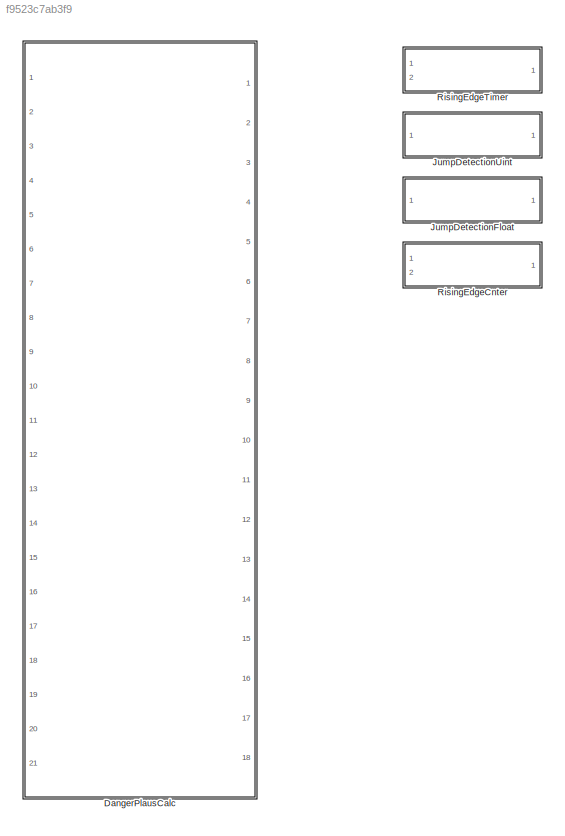
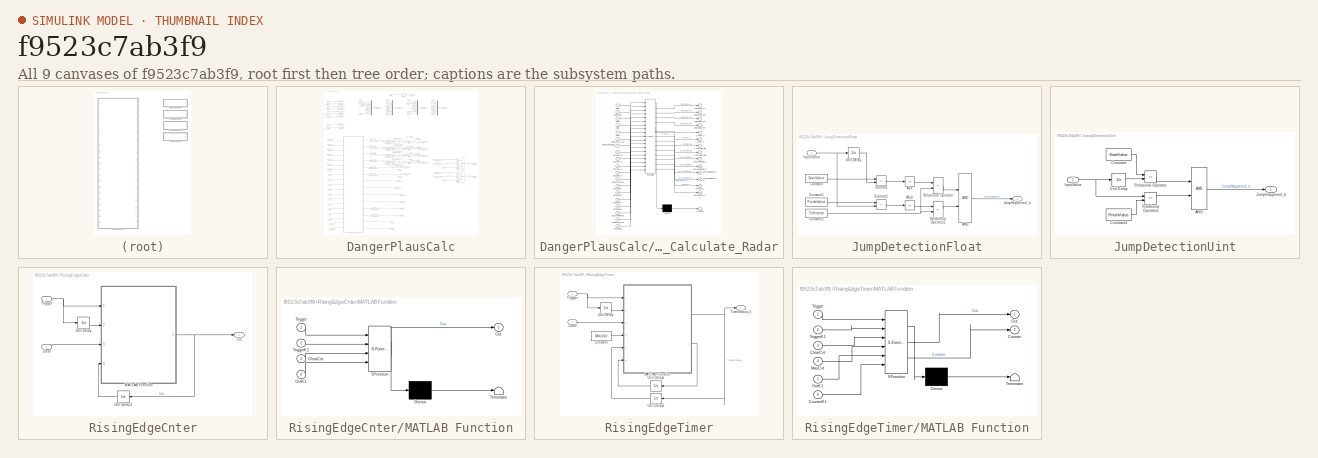
[diagram: thumbnail index - all 9 canvases of the model, root first then tree order]
MODEL slx_f9523c7ab3f9
KIND library
CONFIG AbsTol = auto
CONFIG EnableMultiTasking = off
CONFIG FixedStep = auto
CONFIG MaxStep = auto
CONFIG MinStep = auto
CONFIG RelTol = 1e-3
CONFIG SampleTimeConstraint = Unconstrained
CONFIG SolverName = VariableStepAuto
CONFIG StartTime = 0.0
CONFIG StopTime = 10.0
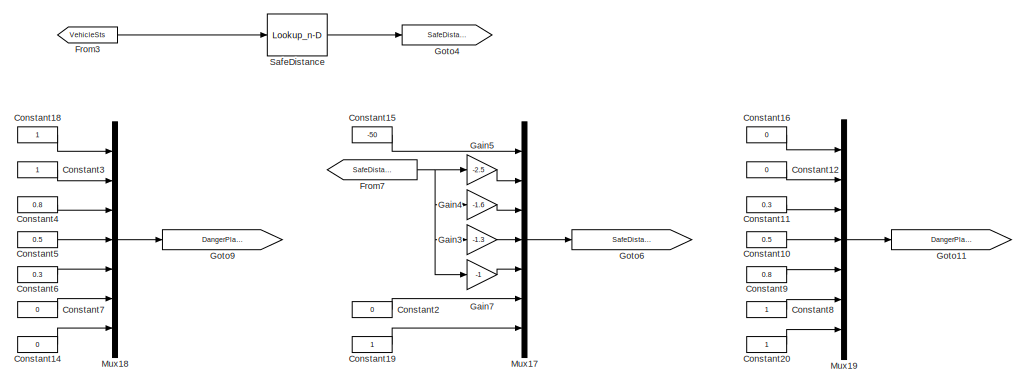
[diagram: DangerPlausCalc - part 1/7, top center region]
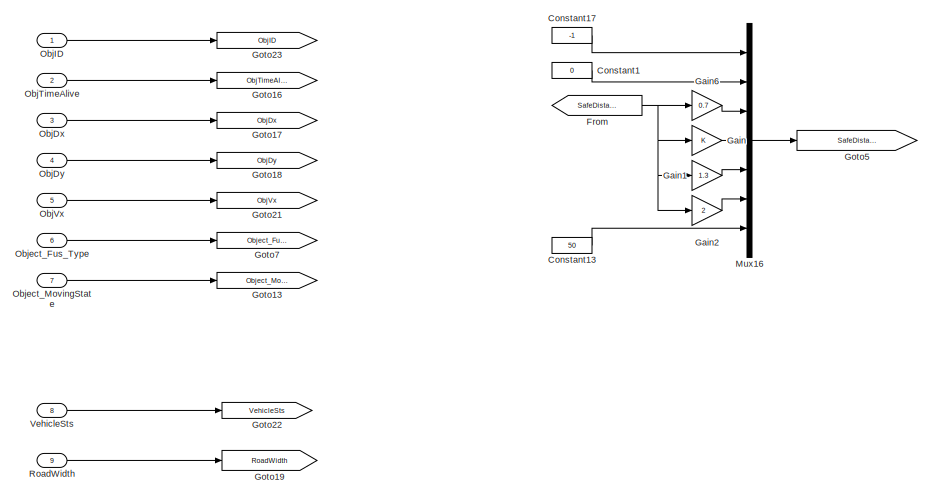
[diagram: DangerPlausCalc - part 2/7, top left region]
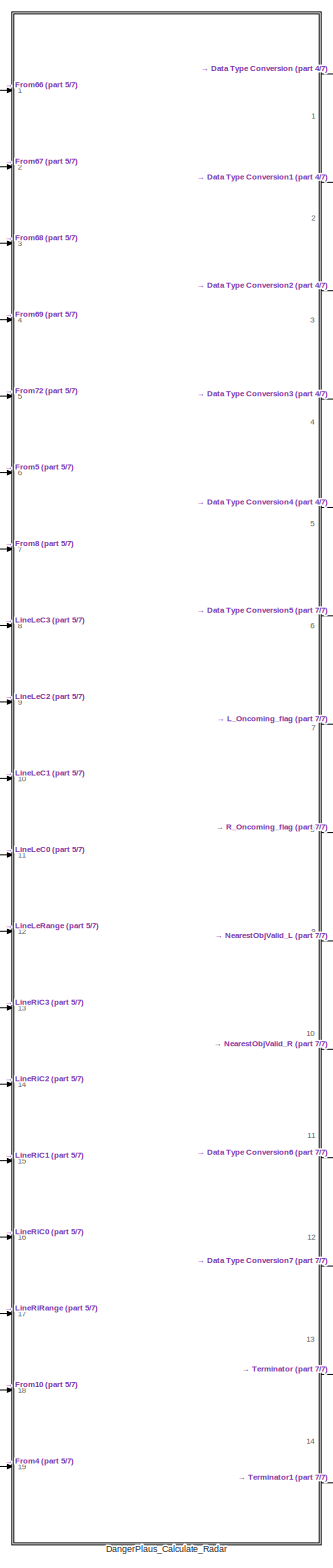
[diagram: DangerPlausCalc - part 3/7, middle left region]
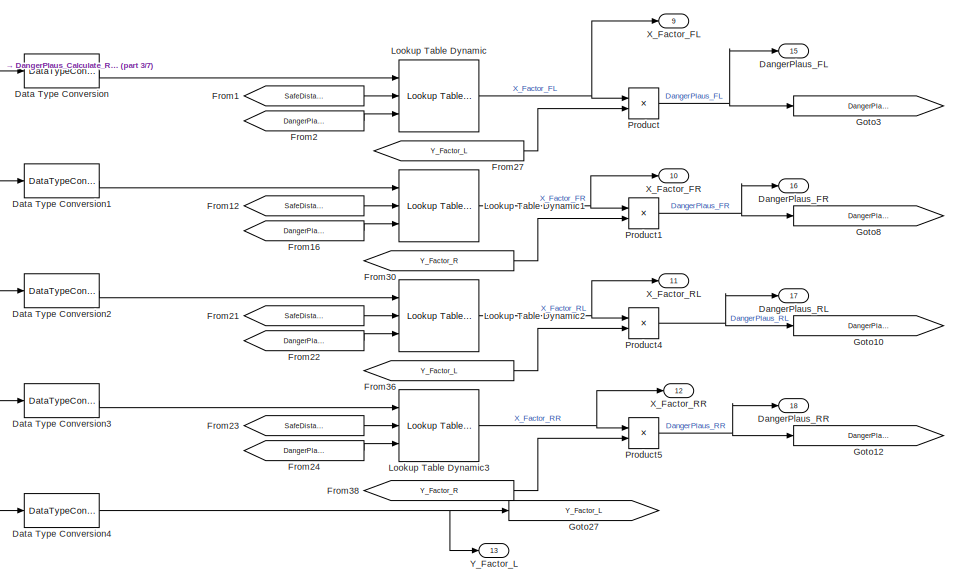
[diagram: DangerPlausCalc - part 4/7, central region]
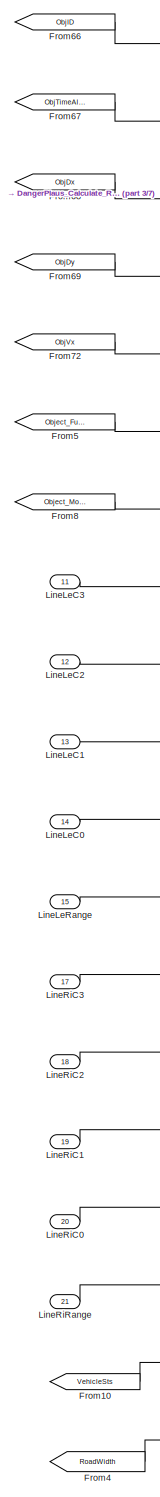
[diagram: DangerPlausCalc - part 5/7, middle left region]
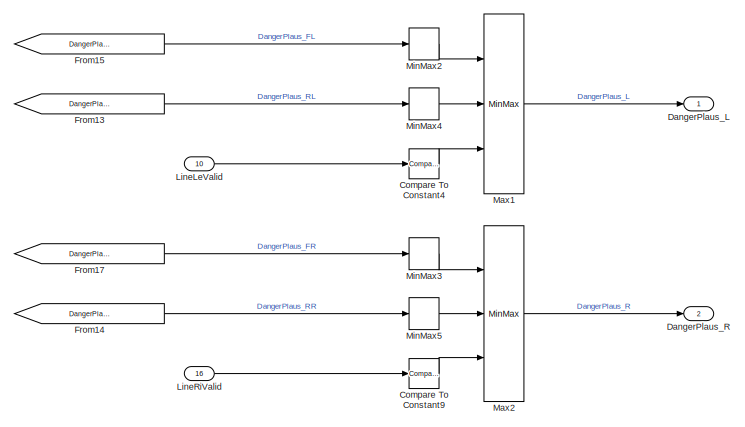
[diagram: DangerPlausCalc - part 6/7, middle right region]
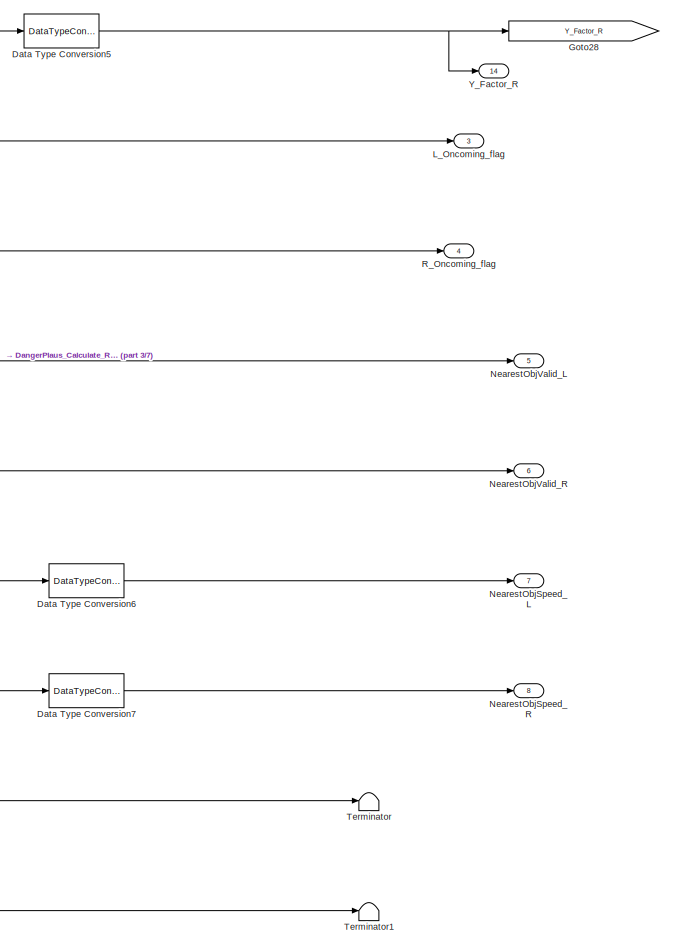
[diagram: DangerPlausCalc - part 7/7, bottom center region]
BLOCK [SubSystem] DangerPlausCalc
  Ports = [21, 18]
  RTWFcnNameOpts = Use subsystem name
  RTWFileNameOpts = Use function name
  RTWSystemCode = Reusable function
  RequestExecContextInheritance = off
  TreatAsAtomicUnit = on
BLOCK [Reference] DangerPlausCalc/Compare To Constant4  REF=simulink/Logic and Bit
Operations/Compare
To Constant
  Ports = [1, 1]
  SourceBlock = simulink/Logic and Bit\nOperations/Compare\nTo Constant
  SourceProductBaseCode = SL
  SourceType = Compare To Constant
BLOCK [Reference] DangerPlausCalc/Compare To Constant9  REF=simulink/Logic and Bit
Operations/Compare
To Constant
  Ports = [1, 1]
  SourceBlock = simulink/Logic and Bit\nOperations/Compare\nTo Constant
  SourceProductBaseCode = SL
  SourceType = Compare To Constant
BLOCK [Constant] DangerPlausCalc/Constant1
  OutDataTypeStr = Inherit: Inherit via back propagation
  Value = 0
BLOCK [Constant] DangerPlausCalc/Constant10
  OutDataTypeStr = Inherit: Inherit via back propagation
  Value = 0.5
BLOCK [Constant] DangerPlausCalc/Constant11
  OutDataTypeStr = Inherit: Inherit via back propagation
  Value = 0.3
BLOCK [Constant] DangerPlausCalc/Constant12
  OutDataTypeStr = Inherit: Inherit via back propagation
  Value = 0
BLOCK [Constant] DangerPlausCalc/Constant13
  OutDataTypeStr = Inherit: Inherit via back propagation
  Value = 50
BLOCK [Constant] DangerPlausCalc/Constant14
  OutDataTypeStr = Inherit: Inherit via back propagation
  Value = 0
BLOCK [Constant] DangerPlausCalc/Constant15
  OutDataTypeStr = Inherit: Inherit via back propagation
  Value = -50
BLOCK [Constant] DangerPlausCalc/Constant16
  OutDataTypeStr = Inherit: Inherit via back propagation
  Value = 0
BLOCK [Constant] DangerPlausCalc/Constant17
  OutDataTypeStr = Inherit: Inherit via back propagation
  Value = -1
BLOCK [Constant] DangerPlausCalc/Constant18
  OutDataTypeStr = Inherit: Inherit via back propagation
BLOCK [Constant] DangerPlausCalc/Constant19
  OutDataTypeStr = Inherit: Inherit via back propagation
BLOCK [Constant] DangerPlausCalc/Constant2
  OutDataTypeStr = Inherit: Inherit via back propagation
  Value = 0
BLOCK [Constant] DangerPlausCalc/Constant20
  OutDataTypeStr = Inherit: Inherit via back propagation
BLOCK [Constant] DangerPlausCalc/Constant3
  OutDataTypeStr = Inherit: Inherit via back propagation
BLOCK [Constant] DangerPlausCalc/Constant4
  OutDataTypeStr = Inherit: Inherit via back propagation
  Value = 0.8
BLOCK [Constant] DangerPlausCalc/Constant5
  OutDataTypeStr = Inherit: Inherit via back propagation
  Value = 0.5
BLOCK [Constant] DangerPlausCalc/Constant6
  OutDataTypeStr = Inherit: Inherit via back propagation
  Value = 0.3
BLOCK [Constant] DangerPlausCalc/Constant7
  OutDataTypeStr = Inherit: Inherit via back propagation
  Value = 0
BLOCK [Constant] DangerPlausCalc/Constant8
  OutDataTypeStr = Inherit: Inherit via back propagation
BLOCK [Constant] DangerPlausCalc/Constant9
  OutDataTypeStr = Inherit: Inherit via back propagation
  Value = 0.8
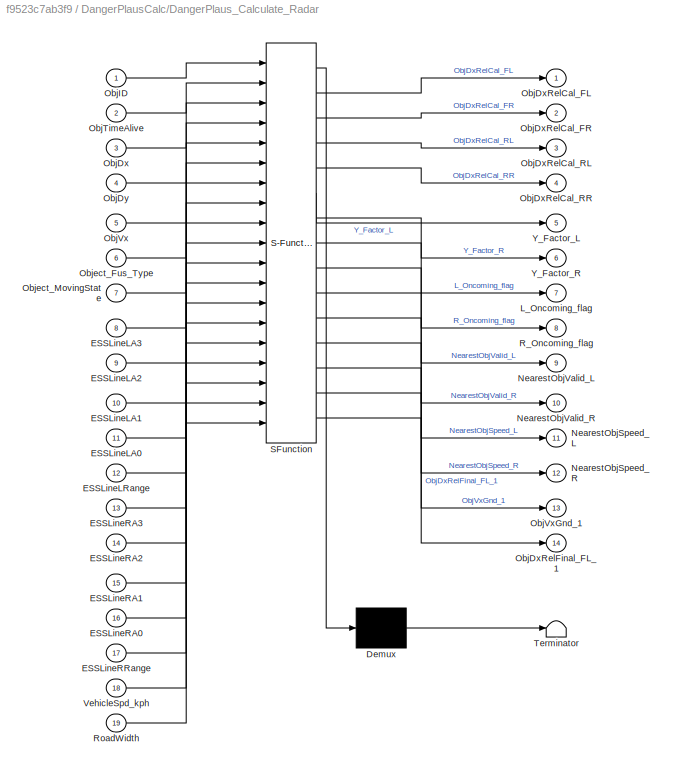
BLOCK [SubSystem] DangerPlausCalc/DangerPlaus_Calculate_Radar
  ErrorFcn = Stateflow.Translate.translate
  PermitHierarchicalResolution = ExplicitOnly
  Ports = [19, 14]
  RequestExecContextInheritance = off
  SFBlockType = MATLAB Function
  TreatAsAtomicUnit = on
BLOCK [Demux] DangerPlausCalc/DangerPlaus_Calculate_Radar/ Demux 
  Outputs = 1
  Ports = [1, 1]
BLOCK [S-Function] DangerPlausCalc/DangerPlaus_Calculate_Radar/ SFunction 
  EnableBusSupport = on
  FunctionName = sf_sfun
  Parameters = ObjNum,P_Global_DxvFrontBumper_m,P_Global_DxvRearBumper_m,P_VSM_DPC_HWALineRearA2Factor,P_VSM_DPC_HWALineRearA3Factor
  PortCounts = [19 15]
  Ports = [19, 15]
  SFcnIsStateOwnerBlock = off
  SFunctionDeploymentMode = off
  Tag = Stateflow S-Function 7
BLOCK [Terminator] DangerPlausCalc/DangerPlaus_Calculate_Radar/ Terminator 
BLOCK [Inport] DangerPlausCalc/DangerPlaus_Calculate_Radar/ESSLineLA0
  Port = 11
BLOCK [Inport] DangerPlausCalc/DangerPlaus_Calculate_Radar/ESSLineLA1
  Port = 10
BLOCK [Inport] DangerPlausCalc/DangerPlaus_Calculate_Radar/ESSLineLA2
  Port = 9
BLOCK [Inport] DangerPlausCalc/DangerPlaus_Calculate_Radar/ESSLineLA3
  Port = 8
BLOCK [Inport] DangerPlausCalc/DangerPlaus_Calculate_Radar/ESSLineLRange
  Port = 12
BLOCK [Inport] DangerPlausCalc/DangerPlaus_Calculate_Radar/ESSLineRA0
  Port = 16
BLOCK [Inport] DangerPlausCalc/DangerPlaus_Calculate_Radar/ESSLineRA1
  Port = 15
BLOCK [Inport] DangerPlausCalc/DangerPlaus_Calculate_Radar/ESSLineRA2
  Port = 14
BLOCK [Inport] DangerPlausCalc/DangerPlaus_Calculate_Radar/ESSLineRA3
  Port = 13
BLOCK [Inport] DangerPlausCalc/DangerPlaus_Calculate_Radar/ESSLineRRange
  Port = 17
BLOCK [Outport] DangerPlausCalc/DangerPlaus_Calculate_Radar/L_Oncoming_flag
  Port = 7
BLOCK [Outport] DangerPlausCalc/DangerPlaus_Calculate_Radar/NearestObjSpeed_L
  Port = 11
BLOCK [Outport] DangerPlausCalc/DangerPlaus_Calculate_Radar/NearestObjSpeed_R
  Port = 12
BLOCK [Outport] DangerPlausCalc/DangerPlaus_Calculate_Radar/NearestObjValid_L
  Port = 9
BLOCK [Outport] DangerPlausCalc/DangerPlaus_Calculate_Radar/NearestObjValid_R
  Port = 10
BLOCK [Inport] DangerPlausCalc/DangerPlaus_Calculate_Radar/ObjDx
  Port = 3
BLOCK [Outport] DangerPlausCalc/DangerPlaus_Calculate_Radar/ObjDxRelCal_FL
BLOCK [Outport] DangerPlausCalc/DangerPlaus_Calculate_Radar/ObjDxRelCal_FR
  Port = 2
BLOCK [Outport] DangerPlausCalc/DangerPlaus_Calculate_Radar/ObjDxRelCal_RL
  Port = 3
BLOCK [Outport] DangerPlausCalc/DangerPlaus_Calculate_Radar/ObjDxRelCal_RR
  Port = 4
BLOCK [Outport] DangerPlausCalc/DangerPlaus_Calculate_Radar/ObjDxRelFinal_FL_1
  Port = 14
BLOCK [Inport] DangerPlausCalc/DangerPlaus_Calculate_Radar/ObjDy
  Port = 4
BLOCK [Inport] DangerPlausCalc/DangerPlaus_Calculate_Radar/ObjID
BLOCK [Inport] DangerPlausCalc/DangerPlaus_Calculate_Radar/ObjTimeAlive
  Port = 2
BLOCK [Inport] DangerPlausCalc/DangerPlaus_Calculate_Radar/ObjVx
  Port = 5
BLOCK [Outport] DangerPlausCalc/DangerPlaus_Calculate_Radar/ObjVxGnd_1
  Port = 13
BLOCK [Inport] DangerPlausCalc/DangerPlaus_Calculate_Radar/Object_Fus_Type
  Port = 6
BLOCK [Inport] DangerPlausCalc/DangerPlaus_Calculate_Radar/Object_MovingState
  Port = 7
BLOCK [Outport] DangerPlausCalc/DangerPlaus_Calculate_Radar/R_Oncoming_flag
  Port = 8
BLOCK [Inport] DangerPlausCalc/DangerPlaus_Calculate_Radar/RoadWidth
  Port = 19
BLOCK [Inport] DangerPlausCalc/DangerPlaus_Calculate_Radar/VehicleSpd_kph
  Port = 18
BLOCK [Outport] DangerPlausCalc/DangerPlaus_Calculate_Radar/Y_Factor_L
  Port = 5
BLOCK [Outport] DangerPlausCalc/DangerPlaus_Calculate_Radar/Y_Factor_R
  Port = 6
BLOCK [Outport] DangerPlausCalc/DangerPlaus_FL
  OutDataTypeStr = single
  Port = 15
BLOCK [Outport] DangerPlausCalc/DangerPlaus_FR
  OutDataTypeStr = single
  Port = 16
BLOCK [Outport] DangerPlausCalc/DangerPlaus_L
  OutDataTypeStr = single
BLOCK [Outport] DangerPlausCalc/DangerPlaus_R
  OutDataTypeStr = single
  Port = 2
BLOCK [Outport] DangerPlausCalc/DangerPlaus_RL
  OutDataTypeStr = single
  Port = 17
BLOCK [Outport] DangerPlausCalc/DangerPlaus_RR
  OutDataTypeStr = single
  Port = 18
BLOCK [DataTypeConversion] DangerPlausCalc/Data Type Conversion
  OutDataTypeStr = single
  RndMeth = Floor
  SaturateOnIntegerOverflow = off
BLOCK [DataTypeConversion] DangerPlausCalc/Data Type Conversion1
  OutDataTypeStr = single
  RndMeth = Floor
  SaturateOnIntegerOverflow = off
BLOCK [DataTypeConversion] DangerPlausCalc/Data Type Conversion2
  OutDataTypeStr = single
  RndMeth = Floor
  SaturateOnIntegerOverflow = off
BLOCK [DataTypeConversion] DangerPlausCalc/Data Type Conversion3
  OutDataTypeStr = single
  RndMeth = Floor
  SaturateOnIntegerOverflow = off
BLOCK [DataTypeConversion] DangerPlausCalc/Data Type Conversion4
  OutDataTypeStr = single
  RndMeth = Floor
  SaturateOnIntegerOverflow = off
BLOCK [DataTypeConversion] DangerPlausCalc/Data Type Conversion5
  OutDataTypeStr = single
  RndMeth = Floor
  SaturateOnIntegerOverflow = off
BLOCK [DataTypeConversion] DangerPlausCalc/Data Type Conversion6
  OutDataTypeStr = single
  RndMeth = Floor
  SaturateOnIntegerOverflow = off
BLOCK [DataTypeConversion] DangerPlausCalc/Data Type Conversion7
  OutDataTypeStr = single
  RndMeth = Floor
  SaturateOnIntegerOverflow = off
BLOCK [From] DangerPlausCalc/From
  GotoTag = SafeDistance
BLOCK [From] DangerPlausCalc/From1
  GotoTag = SafeDistanceMatrix_F
BLOCK [From] DangerPlausCalc/From10
  GotoTag = VehicleSts
BLOCK [From] DangerPlausCalc/From12
  GotoTag = SafeDistanceMatrix_F
BLOCK [From] DangerPlausCalc/From13
  GotoTag = DangerPlaus_RL
BLOCK [From] DangerPlausCalc/From14
  GotoTag = DangerPlaus_RR
BLOCK [From] DangerPlausCalc/From15
  GotoTag = DangerPlaus_FL
BLOCK [From] DangerPlausCalc/From16
  GotoTag = DangerPlausMatrix_F
BLOCK [From] DangerPlausCalc/From17
  GotoTag = DangerPlaus_FR
BLOCK [From] DangerPlausCalc/From2
  GotoTag = DangerPlausMatrix_F
BLOCK [From] DangerPlausCalc/From21
  GotoTag = SafeDistanceMatrix_R
BLOCK [From] DangerPlausCalc/From22
  GotoTag = DangerPlausMatrix_R
BLOCK [From] DangerPlausCalc/From23
  GotoTag = SafeDistanceMatrix_R
BLOCK [From] DangerPlausCalc/From24
  GotoTag = DangerPlausMatrix_R
BLOCK [From] DangerPlausCalc/From27
  GotoTag = Y_Factor_L
BLOCK [From] DangerPlausCalc/From3
  GotoTag = VehicleSts
BLOCK [From] DangerPlausCalc/From30
  GotoTag = Y_Factor_R
BLOCK [From] DangerPlausCalc/From36
  GotoTag = Y_Factor_L
BLOCK [From] DangerPlausCalc/From38
  GotoTag = Y_Factor_R
BLOCK [From] DangerPlausCalc/From4
  GotoTag = RoadWidth
BLOCK [From] DangerPlausCalc/From5
  GotoTag = Object_Fus_Type
BLOCK [From] DangerPlausCalc/From66
  GotoTag = ObjID
BLOCK [From] DangerPlausCalc/From67
  GotoTag = ObjTimeAlive
BLOCK [From] DangerPlausCalc/From68
  GotoTag = ObjDx
BLOCK [From] DangerPlausCalc/From69
  GotoTag = ObjDy
BLOCK [From] DangerPlausCalc/From7
  GotoTag = SafeDistance
BLOCK [From] DangerPlausCalc/From72
  GotoTag = ObjVx
BLOCK [From] DangerPlausCalc/From8
  GotoTag = Object_MovingState
BLOCK [Gain] DangerPlausCalc/Gain
BLOCK [Gain] DangerPlausCalc/Gain1
  Gain = 1.3
BLOCK [Gain] DangerPlausCalc/Gain2
  Gain = 2
BLOCK [Gain] DangerPlausCalc/Gain3
  Gain = -1.3
BLOCK [Gain] DangerPlausCalc/Gain4
  Gain = -1.6
BLOCK [Gain] DangerPlausCalc/Gain5
  Gain = -2.5
BLOCK [Gain] DangerPlausCalc/Gain6
  Gain = 0.7
BLOCK [Gain] DangerPlausCalc/Gain7
  Gain = -1
BLOCK [Goto] DangerPlausCalc/Goto10
  GotoTag = DangerPlaus_RL
BLOCK [Goto] DangerPlausCalc/Goto11
  GotoTag = DangerPlausMatrix_R
BLOCK [Goto] DangerPlausCalc/Goto12
  GotoTag = DangerPlaus_RR
BLOCK [Goto] DangerPlausCalc/Goto13
  GotoTag = Object_MovingState
BLOCK [Goto] DangerPlausCalc/Goto16
  GotoTag = ObjTimeAlive
BLOCK [Goto] DangerPlausCalc/Goto17
  GotoTag = ObjDx
BLOCK [Goto] DangerPlausCalc/Goto18
  GotoTag = ObjDy
BLOCK [Goto] DangerPlausCalc/Goto19
  GotoTag = RoadWidth
BLOCK [Goto] DangerPlausCalc/Goto21
  GotoTag = ObjVx
BLOCK [Goto] DangerPlausCalc/Goto22
  GotoTag = VehicleSts
BLOCK [Goto] DangerPlausCalc/Goto23
  GotoTag = ObjID
BLOCK [Goto] DangerPlausCalc/Goto27
  GotoTag = Y_Factor_L
BLOCK [Goto] DangerPlausCalc/Goto28
  GotoTag = Y_Factor_R
BLOCK [Goto] DangerPlausCalc/Goto3
  GotoTag = DangerPlaus_FL
BLOCK [Goto] DangerPlausCalc/Goto4
  GotoTag = SafeDistance
BLOCK [Goto] DangerPlausCalc/Goto5
  GotoTag = SafeDistanceMatrix_F
BLOCK [Goto] DangerPlausCalc/Goto6
  GotoTag = SafeDistanceMatrix_R
BLOCK [Goto] DangerPlausCalc/Goto7
  GotoTag = Object_Fus_Type
BLOCK [Goto] DangerPlausCalc/Goto8
  GotoTag = DangerPlaus_FR
BLOCK [Goto] DangerPlausCalc/Goto9
  GotoTag = DangerPlausMatrix_F
BLOCK [Outport] DangerPlausCalc/L_Oncoming_flag
  OutDataTypeStr = boolean
  Port = 3
BLOCK [Inport] DangerPlausCalc/LineLeC0
  Port = 14
BLOCK [Inport] DangerPlausCalc/LineLeC1
  Port = 13
BLOCK [Inport] DangerPlausCalc/LineLeC2
  Port = 12
BLOCK [Inport] DangerPlausCalc/LineLeC3
  Port = 11
BLOCK [Inport] DangerPlausCalc/LineLeRange
  Port = 15
BLOCK [Inport] DangerPlausCalc/LineLeValid
  Port = 10
BLOCK [Inport] DangerPlausCalc/LineRiC0
  Port = 20
BLOCK [Inport] DangerPlausCalc/LineRiC1
  Port = 19
BLOCK [Inport] DangerPlausCalc/LineRiC2
  Port = 18
BLOCK [Inport] DangerPlausCalc/LineRiC3
  Port = 17
BLOCK [Inport] DangerPlausCalc/LineRiRange
  Port = 21
BLOCK [Inport] DangerPlausCalc/LineRiValid
  Port = 16
BLOCK [Reference] DangerPlausCalc/Lookup Table Dynamic  REF=simulink/Lookup
Tables/Lookup
Table
Dynamic
  Ports = [3, 1]
  SourceBlock = simulink/Lookup\nTables/Lookup\nTable\nDynamic
  SourceProductBaseCode = SL
  SourceType = Lookup Table Dynamic
BLOCK [Reference] DangerPlausCalc/Lookup Table Dynamic1  REF=simulink/Lookup
Tables/Lookup
Table
Dynamic
  Ports = [3, 1]
  SourceBlock = simulink/Lookup\nTables/Lookup\nTable\nDynamic
  SourceProductBaseCode = SL
  SourceType = Lookup Table Dynamic
BLOCK [Reference] DangerPlausCalc/Lookup Table Dynamic2  REF=simulink/Lookup
Tables/Lookup
Table
Dynamic
  Ports = [3, 1]
  SourceBlock = simulink/Lookup\nTables/Lookup\nTable\nDynamic
  SourceProductBaseCode = SL
  SourceType = Lookup Table Dynamic
BLOCK [Reference] DangerPlausCalc/Lookup Table Dynamic3  REF=simulink/Lookup
Tables/Lookup
Table
Dynamic
  Ports = [3, 1]
  SourceBlock = simulink/Lookup\nTables/Lookup\nTable\nDynamic
  SourceProductBaseCode = SL
  SourceType = Lookup Table Dynamic
BLOCK [MinMax] DangerPlausCalc/Max1
  Function = max
  Inputs = 3
  Ports = [3, 1]
BLOCK [MinMax] DangerPlausCalc/Max2
  Function = max
  Inputs = 3
  Ports = [3, 1]
BLOCK [MinMax] DangerPlausCalc/MinMax2
  Function = max
  Ports = [1, 1]
BLOCK [MinMax] DangerPlausCalc/MinMax3
  Function = max
  Ports = [1, 1]
BLOCK [MinMax] DangerPlausCalc/MinMax4
  Function = max
  Ports = [1, 1]
BLOCK [MinMax] DangerPlausCalc/MinMax5
  Function = max
  Ports = [1, 1]
BLOCK [Mux] DangerPlausCalc/Mux16
  DisplayOption = bar
  Inputs = 7
  Ports = [7, 1]
BLOCK [Mux] DangerPlausCalc/Mux17
  DisplayOption = bar
  Inputs = 7
  Ports = [7, 1]
BLOCK [Mux] DangerPlausCalc/Mux18
  DisplayOption = bar
  Inputs = 7
  Ports = [7, 1]
BLOCK [Mux] DangerPlausCalc/Mux19
  DisplayOption = bar
  Inputs = 7
  Ports = [7, 1]
BLOCK [Outport] DangerPlausCalc/NearestObjSpeed_L
  OutDataTypeStr = single
  Port = 7
BLOCK [Outport] DangerPlausCalc/NearestObjSpeed_R
  OutDataTypeStr = single
  Port = 8
BLOCK [Outport] DangerPlausCalc/NearestObjValid_L
  OutDataTypeStr = boolean
  Port = 5
BLOCK [Outport] DangerPlausCalc/NearestObjValid_R
  OutDataTypeStr = boolean
  Port = 6
BLOCK [Inport] DangerPlausCalc/ObjDx
  Port = 3
  PortDimensions = ObjNum
  VarSizeSig = No
BLOCK [Inport] DangerPlausCalc/ObjDy
  Port = 4
  PortDimensions = ObjNum
BLOCK [Inport] DangerPlausCalc/ObjID
  PortDimensions = ObjNum
  VarSizeSig = No
BLOCK [Inport] DangerPlausCalc/ObjTimeAlive
  Port = 2
  PortDimensions = ObjNum
  VarSizeSig = No
BLOCK [Inport] DangerPlausCalc/ObjVx
  Port = 5
  PortDimensions = ObjNum
BLOCK [Inport] DangerPlausCalc/Object_Fus_Type
  Port = 6
  PortDimensions = ObjNum
BLOCK [Inport] DangerPlausCalc/Object_MovingState
  Port = 7
  PortDimensions = ObjNum
BLOCK [Product] DangerPlausCalc/Product
  Ports = [2, 1]
BLOCK [Product] DangerPlausCalc/Product1
  Ports = [2, 1]
BLOCK [Product] DangerPlausCalc/Product4
  Ports = [2, 1]
BLOCK [Product] DangerPlausCalc/Product5
  Ports = [2, 1]
BLOCK [Outport] DangerPlausCalc/R_Oncoming_flag
  OutDataTypeStr = boolean
  Port = 4
BLOCK [Inport] DangerPlausCalc/RoadWidth
  Port = 9
BLOCK [Lookup_n-D] DangerPlausCalc/SafeDistance
  BreakpointsForDimension1 = [0,20,30,40,120]
  InputPortMap = u0
  NumberOfTableDimensions = 1
  Ports = [1, 1]
  RndMeth = Simplest
  Table = [4,5,8,10,10]
BLOCK [Terminator] DangerPlausCalc/Terminator
BLOCK [Terminator] DangerPlausCalc/Terminator1
BLOCK [Inport] DangerPlausCalc/VehicleSts
  Port = 8
BLOCK [Outport] DangerPlausCalc/X_Factor_FL
  OutDataTypeStr = single
  Port = 9
BLOCK [Outport] DangerPlausCalc/X_Factor_FR
  OutDataTypeStr = single
  Port = 10
BLOCK [Outport] DangerPlausCalc/X_Factor_RL
  OutDataTypeStr = single
  Port = 11
BLOCK [Outport] DangerPlausCalc/X_Factor_RR
  OutDataTypeStr = single
  Port = 12
BLOCK [Outport] DangerPlausCalc/Y_Factor_L
  OutDataTypeStr = single
  Port = 13
BLOCK [Outport] DangerPlausCalc/Y_Factor_R
  OutDataTypeStr = single
  Port = 14
BLOCK [SubSystem] JumpDetectionFloat
  Ports = [1, 1]
  RequestExecContextInheritance = off
BLOCK [Logic] JumpDetectionFloat/AND
  AllPortsSameDT = off
  OutDataTypeStr = boolean
  Ports = [2, 1]
BLOCK [Abs] JumpDetectionFloat/Abs
  SaturateOnIntegerOverflow = off
BLOCK [Abs] JumpDetectionFloat/Abs1
  SaturateOnIntegerOverflow = off
BLOCK [Constant] JumpDetectionFloat/Constant
  OutDataTypeStr = single
  Value = StartValue
BLOCK [Constant] JumpDetectionFloat/Constant1
  OutDataTypeStr = single
  Value = FinishValue
BLOCK [Constant] JumpDetectionFloat/Constant2
  OutDataTypeStr = single
  Value = Tolerance
BLOCK [Inport] JumpDetectionFloat/InputValue
  OutDataTypeStr = single
BLOCK [Outport] JumpDetectionFloat/JumpHappened_b
BLOCK [RelationalOperator] JumpDetectionFloat/Relational Operator
  InputSameDT = off
  Operator = <=
  OutDataTypeStr = boolean
  Ports = [2, 1]
  RndMeth = Simplest
BLOCK [RelationalOperator] JumpDetectionFloat/Relational Operator1
  InputSameDT = off
  Operator = <=
  OutDataTypeStr = boolean
  Ports = [2, 1]
  RndMeth = Simplest
BLOCK [Sum] JumpDetectionFloat/Subtract
  IconShape = rectangular
  Inputs = +-
  Ports = [2, 1]
BLOCK [Sum] JumpDetectionFloat/Subtract1
  IconShape = rectangular
  Inputs = +-
  Ports = [2, 1]
BLOCK [UnitDelay] JumpDetectionFloat/Unit Delay
  HasFrameUpgradeWarning = on
  SampleTime = -1
BLOCK [SubSystem] JumpDetectionUint
  Ports = [1, 1]
  RequestExecContextInheritance = off
BLOCK [Logic] JumpDetectionUint/AND
  AllPortsSameDT = off
  OutDataTypeStr = boolean
  Ports = [2, 1]
BLOCK [Constant] JumpDetectionUint/Constant
  OutDataTypeStr = uint8
  Value = StartValue
BLOCK [Constant] JumpDetectionUint/Constant1
  OutDataTypeStr = uint8
  Value = FinishValue
BLOCK [Inport] JumpDetectionUint/InputValue
  OutDataTypeStr = uint8
BLOCK [Outport] JumpDetectionUint/JumpHappened_b
BLOCK [RelationalOperator] JumpDetectionUint/Relational Operator
  InputSameDT = off
  Operator = ==
  OutDataTypeStr = boolean
  Ports = [2, 1]
  RndMeth = Simplest
BLOCK [RelationalOperator] JumpDetectionUint/Relational Operator1
  InputSameDT = off
  Operator = ==
  OutDataTypeStr = boolean
  Ports = [2, 1]
  RndMeth = Simplest
BLOCK [UnitDelay] JumpDetectionUint/Unit Delay
  HasFrameUpgradeWarning = on
  SampleTime = -1
BLOCK [SubSystem] RisingEdgeCnter
  Ports = [2, 1]
  RequestExecContextInheritance = off
BLOCK [Inport] RisingEdgeCnter/Clear
  OutDataTypeStr = boolean
  Port = 2
BLOCK [Outport] RisingEdgeCnter/Cnt
  OutDataTypeStr = uint8
BLOCK [SubSystem] RisingEdgeCnter/MATLAB Function
  ErrorFcn = Stateflow.Translate.translate
  PermitHierarchicalResolution = ExplicitOnly
  Ports = [4, 1]
  RequestExecContextInheritance = off
  SFBlockType = MATLAB Function
  TreatAsAtomicUnit = on
BLOCK [Demux] RisingEdgeCnter/MATLAB Function/ Demux 
  Outputs = 1
  Ports = [1, 1]
BLOCK [S-Function] RisingEdgeCnter/MATLAB Function/ SFunction 
  EnableBusSupport = off
  FunctionName = sf_sfun
  PortCounts = [4 2]
  Ports = [4, 2]
  SFcnIsStateOwnerBlock = off
  SFunctionDeploymentMode = off
  Tag = Stateflow S-Function 2
BLOCK [Terminator] RisingEdgeCnter/MATLAB Function/ Terminator 
BLOCK [Inport] RisingEdgeCnter/MATLAB Function/ClearCnt
  Port = 3
BLOCK [Outport] RisingEdgeCnter/MATLAB Function/Out
BLOCK [Inport] RisingEdgeCnter/MATLAB Function/OutK1
  Port = 4
BLOCK [Inport] RisingEdgeCnter/MATLAB Function/Trigger
BLOCK [Inport] RisingEdgeCnter/MATLAB Function/TriggerK1
  Port = 2
BLOCK [Inport] RisingEdgeCnter/Trigger
  OutDataTypeStr = boolean
BLOCK [UnitDelay] RisingEdgeCnter/Unit Delay
  HasFrameUpgradeWarning = on
  SampleTime = -1
BLOCK [UnitDelay] RisingEdgeCnter/Unit Delay2
  HasFrameUpgradeWarning = on
  SampleTime = -1
BLOCK [SubSystem] RisingEdgeTimer
  Ports = [2, 1]
  RequestExecContextInheritance = off
BLOCK [Inport] RisingEdgeTimer/Clear
  OutDataTypeStr = boolean
  Port = 2
BLOCK [Constant] RisingEdgeTimer/Constant
  OutDataTypeStr = uint16
  Value = MaxCnt
BLOCK [SubSystem] RisingEdgeTimer/MATLAB Function
  ErrorFcn = Stateflow.Translate.translate
  PermitHierarchicalResolution = ExplicitOnly
  Ports = [6, 2]
  RequestExecContextInheritance = off
  SFBlockType = MATLAB Function
  TreatAsAtomicUnit = on
BLOCK [Demux] RisingEdgeTimer/MATLAB Function/ Demux 
  Outputs = 1
  Ports = [1, 1]
BLOCK [S-Function] RisingEdgeTimer/MATLAB Function/ SFunction 
  EnableBusSupport = off
  FunctionName = sf_sfun
  PortCounts = [6 3]
  Ports = [6, 3]
  SFcnIsStateOwnerBlock = off
  SFunctionDeploymentMode = off
  Tag = Stateflow S-Function 1
BLOCK [Terminator] RisingEdgeTimer/MATLAB Function/ Terminator 
BLOCK [Inport] RisingEdgeTimer/MATLAB Function/ClearCnt
  Port = 3
BLOCK [Outport] RisingEdgeTimer/MATLAB Function/Counter
  Port = 2
BLOCK [Inport] RisingEdgeTimer/MATLAB Function/CounterK1
  Port = 6
BLOCK [Inport] RisingEdgeTimer/MATLAB Function/MaxCnt
  Port = 4
BLOCK [Outport] RisingEdgeTimer/MATLAB Function/Out
BLOCK [Inport] RisingEdgeTimer/MATLAB Function/OutK1
  Port = 5
BLOCK [Inport] RisingEdgeTimer/MATLAB Function/Trigger
BLOCK [Inport] RisingEdgeTimer/MATLAB Function/TriggerK1
  Port = 2
BLOCK [Outport] RisingEdgeTimer/TimerStatus_b
  OutDataTypeStr = boolean
BLOCK [Inport] RisingEdgeTimer/Trigger
  OutDataTypeStr = boolean
BLOCK [UnitDelay] RisingEdgeTimer/Unit Delay
  HasFrameUpgradeWarning = on
  SampleTime = -1
BLOCK [UnitDelay] RisingEdgeTimer/Unit Delay1
  HasFrameUpgradeWarning = on
  SampleTime = -1
BLOCK [UnitDelay] RisingEdgeTimer/Unit Delay2
  HasFrameUpgradeWarning = on
  SampleTime = -1
LINE DangerPlausCalc/Compare To Constant4:1 -> DangerPlausCalc/Max1:3
LINE DangerPlausCalc/Compare To Constant9:1 -> DangerPlausCalc/Max2:3
LINE DangerPlausCalc/Constant10:1 -> DangerPlausCalc/Mux19:4
LINE DangerPlausCalc/Constant11:1 -> DangerPlausCalc/Mux19:3
LINE DangerPlausCalc/Constant12:1 -> DangerPlausCalc/Mux19:2
LINE DangerPlausCalc/Constant13:1 -> DangerPlausCalc/Mux16:7
LINE DangerPlausCalc/Constant14:1 -> DangerPlausCalc/Mux18:7
LINE DangerPlausCalc/Constant15:1 -> DangerPlausCalc/Mux17:1
LINE DangerPlausCalc/Constant16:1 -> DangerPlausCalc/Mux19:1
LINE DangerPlausCalc/Constant17:1 -> DangerPlausCalc/Mux16:1
LINE DangerPlausCalc/Constant18:1 -> DangerPlausCalc/Mux18:1
LINE DangerPlausCalc/Constant19:1 -> DangerPlausCalc/Mux17:7
LINE DangerPlausCalc/Constant1:1 -> DangerPlausCalc/Mux16:2
LINE DangerPlausCalc/Constant20:1 -> DangerPlausCalc/Mux19:7
LINE DangerPlausCalc/Constant2:1 -> DangerPlausCalc/Mux17:6
LINE DangerPlausCalc/Constant3:1 -> DangerPlausCalc/Mux18:2
LINE DangerPlausCalc/Constant4:1 -> DangerPlausCalc/Mux18:3
LINE DangerPlausCalc/Constant5:1 -> DangerPlausCalc/Mux18:4
LINE DangerPlausCalc/Constant6:1 -> DangerPlausCalc/Mux18:5
LINE DangerPlausCalc/Constant7:1 -> DangerPlausCalc/Mux18:6
LINE DangerPlausCalc/Constant8:1 -> DangerPlausCalc/Mux19:6
LINE DangerPlausCalc/Constant9:1 -> DangerPlausCalc/Mux19:5
LINE DangerPlausCalc/DangerPlaus_Calculate_Radar:1 -> DangerPlausCalc/Data Type Conversion:1
LINE DangerPlausCalc/DangerPlaus_Calculate_Radar:10 -> DangerPlausCalc/NearestObjValid_R:1
LINE DangerPlausCalc/DangerPlaus_Calculate_Radar:11 -> DangerPlausCalc/Data Type Conversion6:1
LINE DangerPlausCalc/DangerPlaus_Calculate_Radar:12 -> DangerPlausCalc/Data Type Conversion7:1
LINE DangerPlausCalc/DangerPlaus_Calculate_Radar:13 -> DangerPlausCalc/Terminator:1
LINE DangerPlausCalc/DangerPlaus_Calculate_Radar:14 -> DangerPlausCalc/Terminator1:1
LINE DangerPlausCalc/DangerPlaus_Calculate_Radar:2 -> DangerPlausCalc/Data Type Conversion1:1
LINE DangerPlausCalc/DangerPlaus_Calculate_Radar:3 -> DangerPlausCalc/Data Type Conversion2:1
LINE DangerPlausCalc/DangerPlaus_Calculate_Radar:4 -> DangerPlausCalc/Data Type Conversion3:1
LINE DangerPlausCalc/DangerPlaus_Calculate_Radar:5 -> DangerPlausCalc/Data Type Conversion4:1
LINE DangerPlausCalc/DangerPlaus_Calculate_Radar:6 -> DangerPlausCalc/Data Type Conversion5:1
LINE DangerPlausCalc/DangerPlaus_Calculate_Radar:7 -> DangerPlausCalc/L_Oncoming_flag:1
LINE DangerPlausCalc/DangerPlaus_Calculate_Radar:8 -> DangerPlausCalc/R_Oncoming_flag:1
LINE DangerPlausCalc/DangerPlaus_Calculate_Radar:9 -> DangerPlausCalc/NearestObjValid_L:1
LINE DangerPlausCalc/Data Type Conversion1:1 -> DangerPlausCalc/Lookup Table Dynamic1:1
LINE DangerPlausCalc/Data Type Conversion2:1 -> DangerPlausCalc/Lookup Table Dynamic2:1
LINE DangerPlausCalc/Data Type Conversion3:1 -> DangerPlausCalc/Lookup Table Dynamic3:1
NET DangerPlausCalc/Data Type Conversion4:1 -> DangerPlausCalc/Goto27:1, DangerPlausCalc/Y_Factor_L:1
NET DangerPlausCalc/Data Type Conversion5:1 -> DangerPlausCalc/Goto28:1, DangerPlausCalc/Y_Factor_R:1
LINE DangerPlausCalc/Data Type Conversion6:1 -> DangerPlausCalc/NearestObjSpeed_L:1
LINE DangerPlausCalc/Data Type Conversion7:1 -> DangerPlausCalc/NearestObjSpeed_R:1
LINE DangerPlausCalc/Data Type Conversion:1 -> DangerPlausCalc/Lookup Table Dynamic:1
LINE DangerPlausCalc/From10:1 -> DangerPlausCalc/DangerPlaus_Calculate_Radar:18
LINE DangerPlausCalc/From12:1 -> DangerPlausCalc/Lookup Table Dynamic1:2
LINE DangerPlausCalc/From13:1 -> DangerPlausCalc/MinMax4:1
LINE DangerPlausCalc/From14:1 -> DangerPlausCalc/MinMax5:1
LINE DangerPlausCalc/From15:1 -> DangerPlausCalc/MinMax2:1
LINE DangerPlausCalc/From16:1 -> DangerPlausCalc/Lookup Table Dynamic1:3
LINE DangerPlausCalc/From17:1 -> DangerPlausCalc/MinMax3:1
LINE DangerPlausCalc/From1:1 -> DangerPlausCalc/Lookup Table Dynamic:2
LINE DangerPlausCalc/From21:1 -> DangerPlausCalc/Lookup Table Dynamic2:2
LINE DangerPlausCalc/From22:1 -> DangerPlausCalc/Lookup Table Dynamic2:3
LINE DangerPlausCalc/From23:1 -> DangerPlausCalc/Lookup Table Dynamic3:2
LINE DangerPlausCalc/From24:1 -> DangerPlausCalc/Lookup Table Dynamic3:3
LINE DangerPlausCalc/From27:1 -> DangerPlausCalc/Product:2
LINE DangerPlausCalc/From2:1 -> DangerPlausCalc/Lookup Table Dynamic:3
LINE DangerPlausCalc/From30:1 -> DangerPlausCalc/Product1:2
LINE DangerPlausCalc/From36:1 -> DangerPlausCalc/Product4:2
LINE DangerPlausCalc/From38:1 -> DangerPlausCalc/Product5:2
LINE DangerPlausCalc/From3:1 -> DangerPlausCalc/SafeDistance:1
LINE DangerPlausCalc/From4:1 -> DangerPlausCalc/DangerPlaus_Calculate_Radar:19
LINE DangerPlausCalc/From5:1 -> DangerPlausCalc/DangerPlaus_Calculate_Radar:6
LINE DangerPlausCalc/From66:1 -> DangerPlausCalc/DangerPlaus_Calculate_Radar:1
LINE DangerPlausCalc/From67:1 -> DangerPlausCalc/DangerPlaus_Calculate_Radar:2
LINE DangerPlausCalc/From68:1 -> DangerPlausCalc/DangerPlaus_Calculate_Radar:3
LINE DangerPlausCalc/From69:1 -> DangerPlausCalc/DangerPlaus_Calculate_Radar:4
LINE DangerPlausCalc/From72:1 -> DangerPlausCalc/DangerPlaus_Calculate_Radar:5
NET DangerPlausCalc/From7:1 -> DangerPlausCalc/Gain3:1, DangerPlausCalc/Gain4:1, DangerPlausCalc/Gain5:1, DangerPlausCalc/Gain7:1
LINE DangerPlausCalc/From8:1 -> DangerPlausCalc/DangerPlaus_Calculate_Radar:7
NET DangerPlausCalc/From:1 -> DangerPlausCalc/Gain1:1, DangerPlausCalc/Gain2:1, DangerPlausCalc/Gain6:1, DangerPlausCalc/Gain:1
LINE DangerPlausCalc/Gain1:1 -> DangerPlausCalc/Mux16:5
LINE DangerPlausCalc/Gain2:1 -> DangerPlausCalc/Mux16:6
LINE DangerPlausCalc/Gain3:1 -> DangerPlausCalc/Mux17:4
LINE DangerPlausCalc/Gain4:1 -> DangerPlausCalc/Mux17:3
LINE DangerPlausCalc/Gain5:1 -> DangerPlausCalc/Mux17:2
LINE DangerPlausCalc/Gain6:1 -> DangerPlausCalc/Mux16:3
LINE DangerPlausCalc/Gain7:1 -> DangerPlausCalc/Mux17:5
LINE DangerPlausCalc/Gain:1 -> DangerPlausCalc/Mux16:4
LINE DangerPlausCalc/LineLeC0:1 -> DangerPlausCalc/DangerPlaus_Calculate_Radar:11
LINE DangerPlausCalc/LineLeC1:1 -> DangerPlausCalc/DangerPlaus_Calculate_Radar:10
LINE DangerPlausCalc/LineLeC2:1 -> DangerPlausCalc/DangerPlaus_Calculate_Radar:9
LINE DangerPlausCalc/LineLeC3:1 -> DangerPlausCalc/DangerPlaus_Calculate_Radar:8
LINE DangerPlausCalc/LineLeRange:1 -> DangerPlausCalc/DangerPlaus_Calculate_Radar:12
LINE DangerPlausCalc/LineLeValid:1 -> DangerPlausCalc/Compare To Constant4:1
LINE DangerPlausCalc/LineRiC0:1 -> DangerPlausCalc/DangerPlaus_Calculate_Radar:16
LINE DangerPlausCalc/LineRiC1:1 -> DangerPlausCalc/DangerPlaus_Calculate_Radar:15
LINE DangerPlausCalc/LineRiC2:1 -> DangerPlausCalc/DangerPlaus_Calculate_Radar:14
LINE DangerPlausCalc/LineRiC3:1 -> DangerPlausCalc/DangerPlaus_Calculate_Radar:13
LINE DangerPlausCalc/LineRiRange:1 -> DangerPlausCalc/DangerPlaus_Calculate_Radar:17
LINE DangerPlausCalc/LineRiValid:1 -> DangerPlausCalc/Compare To Constant9:1
NET DangerPlausCalc/Lookup Table Dynamic1:1 -> DangerPlausCalc/Product1:1, DangerPlausCalc/X_Factor_FR:1
NET DangerPlausCalc/Lookup Table Dynamic2:1 -> DangerPlausCalc/Product4:1, DangerPlausCalc/X_Factor_RL:1
NET DangerPlausCalc/Lookup Table Dynamic3:1 -> DangerPlausCalc/Product5:1, DangerPlausCalc/X_Factor_RR:1
NET DangerPlausCalc/Lookup Table Dynamic:1 -> DangerPlausCalc/Product:1, DangerPlausCalc/X_Factor_FL:1
LINE DangerPlausCalc/Max1:1 -> DangerPlausCalc/DangerPlaus_L:1
LINE DangerPlausCalc/Max2:1 -> DangerPlausCalc/DangerPlaus_R:1
LINE DangerPlausCalc/MinMax2:1 -> DangerPlausCalc/Max1:1
LINE DangerPlausCalc/MinMax3:1 -> DangerPlausCalc/Max2:1
LINE DangerPlausCalc/MinMax4:1 -> DangerPlausCalc/Max1:2
LINE DangerPlausCalc/MinMax5:1 -> DangerPlausCalc/Max2:2
LINE DangerPlausCalc/Mux16:1 -> DangerPlausCalc/Goto5:1
LINE DangerPlausCalc/Mux17:1 -> DangerPlausCalc/Goto6:1
LINE DangerPlausCalc/Mux18:1 -> DangerPlausCalc/Goto9:1
LINE DangerPlausCalc/Mux19:1 -> DangerPlausCalc/Goto11:1
LINE DangerPlausCalc/ObjDx:1 -> DangerPlausCalc/Goto17:1
LINE DangerPlausCalc/ObjDy:1 -> DangerPlausCalc/Goto18:1
LINE DangerPlausCalc/ObjID:1 -> DangerPlausCalc/Goto23:1
LINE DangerPlausCalc/ObjTimeAlive:1 -> DangerPlausCalc/Goto16:1
LINE DangerPlausCalc/ObjVx:1 -> DangerPlausCalc/Goto21:1
LINE DangerPlausCalc/Object_Fus_Type:1 -> DangerPlausCalc/Goto7:1
LINE DangerPlausCalc/Object_MovingState:1 -> DangerPlausCalc/Goto13:1
NET DangerPlausCalc/Product1:1 -> DangerPlausCalc/DangerPlaus_FR:1, DangerPlausCalc/Goto8:1
NET DangerPlausCalc/Product4:1 -> DangerPlausCalc/DangerPlaus_RL:1, DangerPlausCalc/Goto10:1
NET DangerPlausCalc/Product5:1 -> DangerPlausCalc/DangerPlaus_RR:1, DangerPlausCalc/Goto12:1
NET DangerPlausCalc/Product:1 -> DangerPlausCalc/DangerPlaus_FL:1, DangerPlausCalc/Goto3:1
LINE DangerPlausCalc/RoadWidth:1 -> DangerPlausCalc/Goto19:1
LINE DangerPlausCalc/SafeDistance:1 -> DangerPlausCalc/Goto4:1
LINE DangerPlausCalc/VehicleSts:1 -> DangerPlausCalc/Goto22:1
LINE JumpDetectionFloat/AND:1 -> JumpDetectionFloat/JumpHappened_b:1
LINE JumpDetectionFloat/Abs1:1 -> JumpDetectionFloat/Relational Operator1:1
LINE JumpDetectionFloat/Abs:1 -> JumpDetectionFloat/Relational Operator:1
LINE JumpDetectionFloat/Constant1:1 -> JumpDetectionFloat/Subtract1:1
NET JumpDetectionFloat/Constant2:1 -> JumpDetectionFloat/Relational Operator1:2, JumpDetectionFloat/Relational Operator:2
LINE JumpDetectionFloat/Constant:1 -> JumpDetectionFloat/Subtract:1
NET JumpDetectionFloat/InputValue:1 -> JumpDetectionFloat/Subtract1:2, JumpDetectionFloat/Unit Delay:1
LINE JumpDetectionFloat/Relational Operator1:1 -> JumpDetectionFloat/AND:2
LINE JumpDetectionFloat/Relational Operator:1 -> JumpDetectionFloat/AND:1
LINE JumpDetectionFloat/Subtract1:1 -> JumpDetectionFloat/Abs1:1
LINE JumpDetectionFloat/Subtract:1 -> JumpDetectionFloat/Abs:1
LINE JumpDetectionFloat/Unit Delay:1 -> JumpDetectionFloat/Subtract:2
LINE JumpDetectionUint/AND:1 -> JumpDetectionUint/JumpHappened_b:1
LINE JumpDetectionUint/Constant1:1 -> JumpDetectionUint/Relational Operator1:2
LINE JumpDetectionUint/Constant:1 -> JumpDetectionUint/Relational Operator:1
NET JumpDetectionUint/InputValue:1 -> JumpDetectionUint/Relational Operator1:1, JumpDetectionUint/Unit Delay:1
LINE JumpDetectionUint/Relational Operator1:1 -> JumpDetectionUint/AND:2
LINE JumpDetectionUint/Relational Operator:1 -> JumpDetectionUint/AND:1
LINE JumpDetectionUint/Unit Delay:1 -> JumpDetectionUint/Relational Operator:2
LINE RisingEdgeCnter/Clear:1 -> RisingEdgeCnter/MATLAB Function:3
NET RisingEdgeCnter/MATLAB Function:1 -> RisingEdgeCnter/Cnt:1, RisingEdgeCnter/Unit Delay2:1
NET RisingEdgeCnter/Trigger:1 -> RisingEdgeCnter/MATLAB Function:1, RisingEdgeCnter/Unit Delay:1
LINE RisingEdgeCnter/Unit Delay2:1 -> RisingEdgeCnter/MATLAB Function:4
LINE RisingEdgeCnter/Unit Delay:1 -> RisingEdgeCnter/MATLAB Function:2
LINE RisingEdgeTimer/Clear:1 -> RisingEdgeTimer/MATLAB Function:3
LINE RisingEdgeTimer/Constant:1 -> RisingEdgeTimer/MATLAB Function:4
NET RisingEdgeTimer/MATLAB Function:1 -> RisingEdgeTimer/TimerStatus_b:1, RisingEdgeTimer/Unit Delay2:1
LINE RisingEdgeTimer/MATLAB Function:2 -> RisingEdgeTimer/Unit Delay1:1
NET RisingEdgeTimer/Trigger:1 -> RisingEdgeTimer/MATLAB Function:1, RisingEdgeTimer/Unit Delay:1
LINE RisingEdgeTimer/Unit Delay1:1 -> RisingEdgeTimer/MATLAB Function:6
LINE RisingEdgeTimer/Unit Delay2:1 -> RisingEdgeTimer/MATLAB Function:5
LINE RisingEdgeTimer/Unit Delay:1 -> RisingEdgeTimer/MATLAB Function:2
note: NET lines group one-source signal fan-out (src -> all destinations, sorted); 1:1 wires keep LINE
CHART DangerPlausCalc/DangerPlaus_Calculate_Radar states=1 transitions=1
  STATE_LABEL 'eML_blk_kernel()'
  STATE_LABEL 'SCRIPT:\nfunction [ObjDxRelCal_FL,ObjDxRelCal_FR,ObjDxRelCal_RL,ObjDxRelCal_RR,Y_Factor_L,Y_Factor_R,...\n    L_Oncoming_flag,R_Oncoming_flag,...\n    NearestObjValid_L,NearestObjValid_R,NearestObjSpeed_L,NearestObjSpeed_R, ObjVxGnd_1, ObjDxRelFinal_FL_1] = ...\n    fcn(ObjID, ObjTimeAlive, ObjDx, ObjDy, ObjVx, Object_Fus_Type, Object_MovingState,...\n    ESSLineLA3, ESSLineLA2,ESSLineLA1, ESSLineLA0, ...<+3608ch>'
CHART RisingEdgeTimer/MATLAB Function states=1 transitions=1
  STATE_LABEL 'eML_blk_kernel()'
  STATE_LABEL 'SCRIPT:\nfunction [Out,Counter] = RisingEdgeTimer(Trigger,TriggerK1, ClearCnt, MaxCnt,OutK1, CounterK1)\n%#codegen\nif MaxCnt~=0\n    if (Trigger==1)&&(TriggerK1==0)\n        Counter = MaxCnt;\n    else\n        Counter = max(CounterK1 - uint16(1),uint16(0));\n    end \n    if ClearCnt\n        Counter = uint16(0);\n    end\n    if Counter>0x0\n        Out = true;\n    else\n        Out = false;\n    end\nelse\n   ...<+160ch>'
CHART RisingEdgeCnter/MATLAB Function states=1 transitions=1
  STATE_LABEL 'eML_blk_kernel()'
  STATE_LABEL 'SCRIPT:\nfunction Out  = RisingEdgeTimer(Trigger,TriggerK1, ClearCnt, OutK1)\n%#codegen\n    if (Trigger==1)&&(TriggerK1==0)\n        Out = OutK1+1;     \n    else\n        Out = OutK1;\n    end \n    if ClearCnt\n        Out = uint8(0);\n    end\nend\n\n\n\n'
CHART  states=0 transitions=0
CHART  states=0 transitions=0
CHART  states=0 transitions=0
